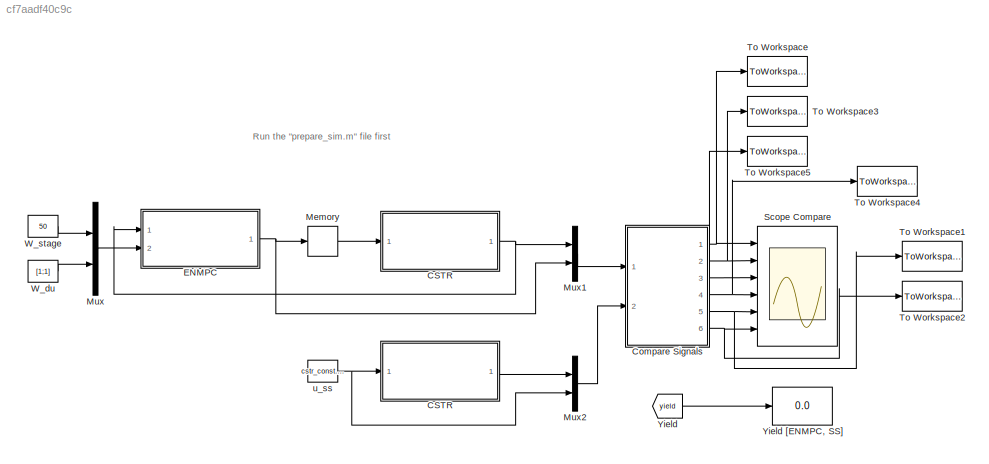
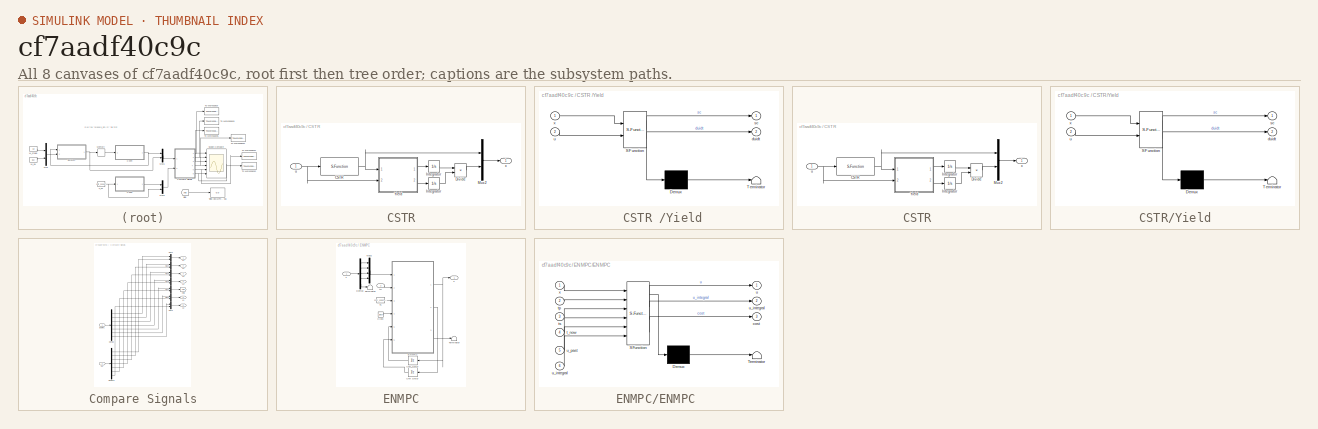
[diagram: thumbnail index - all 8 canvases of the model, root first then tree order]
MODEL slx_cf7aadf40c9c
KIND model
CONFIG AbsTol = auto
CONFIG EnableMultiTasking = off
CONFIG FixedStep = auto
CONFIG MaxStep = auto
CONFIG MinStep = auto
CONFIG RelTol = 1e-3
CONFIG SampleTimeConstraint = Unconstrained
CONFIG Solver = ode15s
CONFIG SolverName = ode15s
CONFIG StartTime = 0.0
CONFIG StopTime = 450
BLOCK [SubSystem]  CSTR 
  Ports = [1, 1]
  RequestExecContextInheritance = off
BLOCK [Integrator]  CSTR / Integrator 
  Ports = [1, 1]
BLOCK [S-Function]  CSTR /CSTR
  EnableBusSupport = off
  FunctionName = cstr_sfun
  Ports = [1, 1]
  SFcnIsStateOwnerBlock = off
  SFunctionDeploymentMode = off
BLOCK [Product]  CSTR /Divide
  InputSameDT = off
  Inputs = */
  OutDataTypeStr = Inherit: Inherit via internal rule
  Ports = [2, 1]
  RndMeth = Floor
  SaturateOnIntegerOverflow = off
BLOCK [Integrator]  CSTR /Integrator
  Ports = [1, 1]
BLOCK [Mux]  CSTR /Mux2
  DisplayOption = bar
  Inputs = 2
  Ports = [2, 1]
BLOCK [SubSystem]  CSTR /Yield
  ErrorFcn = Stateflow.Translate.translate
  PermitHierarchicalResolution = ExplicitOnly
  Ports = [2, 2]
  RequestExecContextInheritance = off
  SFBlockType = MATLAB Function
  TreatAsAtomicUnit = on
BLOCK [Demux]  CSTR /Yield/ Demux 
  Outputs = 1
  Ports = [1, 1]
BLOCK [S-Function]  CSTR /Yield/ SFunction 
  EnableBusSupport = off
  FunctionName = sf_sfun
  PortCounts = [2 3]
  Ports = [2, 3]
  SFcnIsStateOwnerBlock = off
  SFunctionDeploymentMode = off
  Tag = Stateflow S-Function cstr_control_loops 4
BLOCK [Terminator]  CSTR /Yield/ Terminator 
BLOCK [Outport]  CSTR /Yield/duidt
  IconDisplay = Port number
  Port = 2
BLOCK [Outport]  CSTR /Yield/sc
  IconDisplay = Port number
BLOCK [Inport]  CSTR /Yield/u
  IconDisplay = Port number
  Port = 2
BLOCK [Inport]  CSTR /Yield/x
  IconDisplay = Port number
BLOCK [Inport]  CSTR /u
  IconDisplay = Port number
BLOCK [Outport]  CSTR /x
  IconDisplay = Port number
BLOCK [Display]  Yield [ENMPC, SS]
  Decimation = 1
  Ports = [1]
BLOCK [SubSystem] CSTR
  Ports = [1, 1]
  RequestExecContextInheritance = off
BLOCK [Integrator] CSTR/ Integrator 
  Ports = [1, 1]
BLOCK [S-Function] CSTR/CSTR
  EnableBusSupport = off
  FunctionName = cstr_sfun
  Ports = [1, 1]
  SFcnIsStateOwnerBlock = off
  SFunctionDeploymentMode = off
BLOCK [Product] CSTR/Divide
  InputSameDT = off
  Inputs = */
  OutDataTypeStr = Inherit: Inherit via internal rule
  Ports = [2, 1]
  RndMeth = Floor
  SaturateOnIntegerOverflow = off
BLOCK [Integrator] CSTR/Integrator
  Ports = [1, 1]
BLOCK [Mux] CSTR/Mux2
  DisplayOption = bar
  Inputs = 2
  Ports = [2, 1]
BLOCK [SubSystem] CSTR/Yield
  ErrorFcn = Stateflow.Translate.translate
  PermitHierarchicalResolution = ExplicitOnly
  Ports = [2, 2]
  RequestExecContextInheritance = off
  SFBlockType = MATLAB Function
  TreatAsAtomicUnit = on
BLOCK [Demux] CSTR/Yield/ Demux 
  Outputs = 1
  Ports = [1, 1]
BLOCK [S-Function] CSTR/Yield/ SFunction 
  EnableBusSupport = off
  FunctionName = sf_sfun
  PortCounts = [2 3]
  Ports = [2, 3]
  SFcnIsStateOwnerBlock = off
  SFunctionDeploymentMode = off
  Tag = Stateflow S-Function cstr_control_loops 5
BLOCK [Terminator] CSTR/Yield/ Terminator 
BLOCK [Outport] CSTR/Yield/duidt
  IconDisplay = Port number
  Port = 2
BLOCK [Outport] CSTR/Yield/sc
  IconDisplay = Port number
BLOCK [Inport] CSTR/Yield/u
  IconDisplay = Port number
  Port = 2
BLOCK [Inport] CSTR/Yield/x
  IconDisplay = Port number
BLOCK [Inport] CSTR/u
  IconDisplay = Port number
BLOCK [Outport] CSTR/x
  IconDisplay = Port number
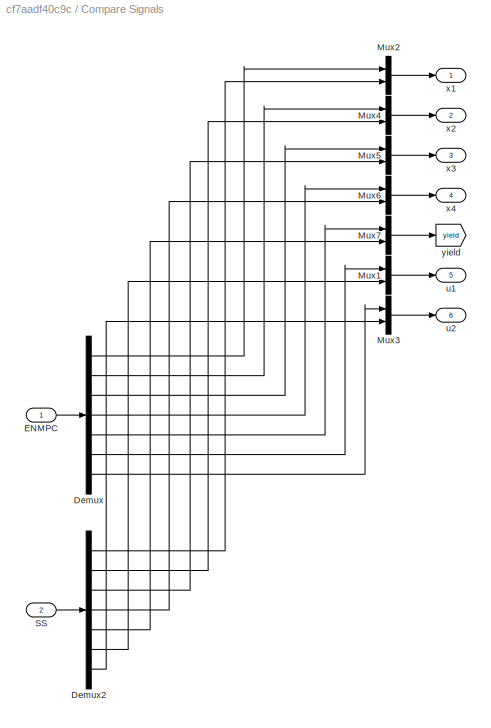
BLOCK [SubSystem] Compare Signals
  Ports = [2, 6]
  RequestExecContextInheritance = off
BLOCK [Demux] Compare Signals/Demux
  DisplayOption = bar
  Outputs = 7
  Ports = [1, 7]
BLOCK [Demux] Compare Signals/Demux2
  DisplayOption = bar
  Outputs = 7
  Ports = [1, 7]
BLOCK [Inport] Compare Signals/ENMPC
  IconDisplay = Port number
BLOCK [Mux] Compare Signals/Mux1
  DisplayOption = bar
  Inputs = 2
  Ports = [2, 1]
BLOCK [Mux] Compare Signals/Mux2
  DisplayOption = bar
  Inputs = 2
  Ports = [2, 1]
BLOCK [Mux] Compare Signals/Mux3
  DisplayOption = bar
  Inputs = 2
  Ports = [2, 1]
BLOCK [Mux] Compare Signals/Mux4
  DisplayOption = bar
  Inputs = 2
  Ports = [2, 1]
BLOCK [Mux] Compare Signals/Mux5
  DisplayOption = bar
  Inputs = 2
  Ports = [2, 1]
BLOCK [Mux] Compare Signals/Mux6
  DisplayOption = bar
  Inputs = 2
  Ports = [2, 1]
BLOCK [Mux] Compare Signals/Mux7
  DisplayOption = bar
  Inputs = 2
  Ports = [2, 1]
BLOCK [Inport] Compare Signals/SS
  IconDisplay = Port number
  Port = 2
BLOCK [Outport] Compare Signals/u1
  IconDisplay = Port number
  Port = 5
BLOCK [Outport] Compare Signals/u2
  IconDisplay = Port number
  Port = 6
BLOCK [Outport] Compare Signals/x1
  IconDisplay = Port number
BLOCK [Outport] Compare Signals/x2
  IconDisplay = Port number
  Port = 2
BLOCK [Outport] Compare Signals/x3
  IconDisplay = Port number
  Port = 3
BLOCK [Outport] Compare Signals/x4
  IconDisplay = Port number
  Port = 4
BLOCK [Goto] Compare Signals/yield
  GotoTag = yield
  TagVisibility = global
BLOCK [SubSystem] ENMPC
  Ports = [2, 1]
  RequestExecContextInheritance = off
BLOCK [UnitDelay] ENMPC/ Unit Delay 
  HasFrameUpgradeWarning = on
  SampleTime = cstr_const.ts
BLOCK [Clock] ENMPC/Clock
BLOCK [Demux] ENMPC/Demux
  DisplayOption = bar
  Outputs = 5
  Ports = [1, 5]
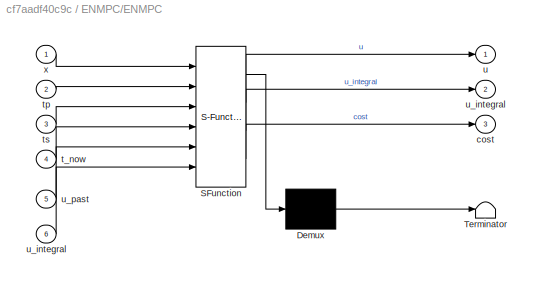
BLOCK [SubSystem] ENMPC/ENMPC 
  ErrorFcn = Stateflow.Translate.translate
  PermitHierarchicalResolution = ExplicitOnly
  Ports = [6, 3]
  RequestExecContextInheritance = off
  SFBlockType = MATLAB Function
  SystemSampleTime = cstr_const.ts
  TreatAsAtomicUnit = on
BLOCK [Demux] ENMPC/ENMPC / Demux 
  Outputs = 1
  Ports = [1, 1]
BLOCK [S-Function] ENMPC/ENMPC / SFunction 
  EnableBusSupport = off
  FunctionName = sf_sfun
  PortCounts = [6 4]
  Ports = [6, 4]
  SFcnIsStateOwnerBlock = off
  SFunctionDeploymentMode = off
  Tag = Stateflow S-Function cstr_control_loops 2
BLOCK [Terminator] ENMPC/ENMPC / Terminator 
BLOCK [Outport] ENMPC/ENMPC /cost
  IconDisplay = Port number
  Port = 3
BLOCK [Inport] ENMPC/ENMPC /t_now
  IconDisplay = Port number
  Port = 4
BLOCK [Inport] ENMPC/ENMPC /tp
  IconDisplay = Port number
  Port = 2
BLOCK [Inport] ENMPC/ENMPC /ts
  IconDisplay = Port number
  Port = 3
BLOCK [Outport] ENMPC/ENMPC /u
  IconDisplay = Port number
BLOCK [Outport] ENMPC/ENMPC /u_integral
  IconDisplay = Port number
  Port = 2
BLOCK [Inport] ENMPC/ENMPC /u_integral 
  IconDisplay = Port number
  Port = 6
BLOCK [Inport] ENMPC/ENMPC /u_past
  IconDisplay = Port number
  Port = 5
BLOCK [Inport] ENMPC/ENMPC /x
  IconDisplay = Port number
BLOCK [Mux] ENMPC/Mux2
  DisplayOption = bar
  Ports = [4, 1]
BLOCK [Terminator] ENMPC/Terminator
BLOCK [Terminator] ENMPC/Terminator 
BLOCK [Constant] ENMPC/Ts
  Value = cstr_const.ts
BLOCK [UnitDelay] ENMPC/Unit Delay
  HasFrameUpgradeWarning = on
  InitialCondition = cstr_const.u_0
  SampleTime = cstr_const.ts
BLOCK [Inport] ENMPC/tp
  IconDisplay = Port number
  Port = 2
BLOCK [Outport] ENMPC/u
  IconDisplay = Port number
BLOCK [Inport] ENMPC/x
  IconDisplay = Port number
BLOCK [Memory] Memory
  InitialCondition = cstr_const.u_0
BLOCK [Mux] Mux
  DisplayOption = bar
  Inputs = 2
  Ports = [2, 1]
BLOCK [Mux] Mux1
  DisplayOption = bar
  Inputs = 2
  Ports = [2, 1]
BLOCK [Mux] Mux2
  DisplayOption = bar
  Inputs = 2
  Ports = [2, 1]
BLOCK [Scope] Scope Compare
  Floating = off
  NumInputPorts = 6
  Ports = [6]
  ScopeSpecificationString = Simulink.scopes.TimeScopeBlockCfg('CurrentConfiguration', extmgr.ConfigurationSet(extmgr.Configuration('Core','General UI',true),extmgr.Configuration('Core','Source UI',true),extmgr.Configuration('Sources','WiredSimulink',true,'DataLogging',true,'DataLoggingSaveFormat','StructureWithTime','DataLoggingVariableName','cstr_data'),extmgr.Configuration('Visuals','Time Domain',true,'TimeAxisLabels','All...<+6799ch>
BLOCK [ToWorkspace] To Workspace
  FixptAsFi = on
  MaxDataPoints = inf
  Ports = [1]
  SampleTime = -1
  SaveFormat = Structure With Time
  VariableName = x1
BLOCK [ToWorkspace] To Workspace1
  FixptAsFi = on
  MaxDataPoints = inf
  Ports = [1]
  SampleTime = -1
  SaveFormat = Structure With Time
  VariableName = u1
BLOCK [ToWorkspace] To Workspace2
  FixptAsFi = on
  MaxDataPoints = inf
  Ports = [1]
  SampleTime = -1
  SaveFormat = Structure With Time
  VariableName = u2
BLOCK [ToWorkspace] To Workspace3
  FixptAsFi = on
  MaxDataPoints = inf
  Ports = [1]
  SampleTime = -1
  SaveFormat = Structure With Time
  VariableName = x2
BLOCK [ToWorkspace] To Workspace4
  FixptAsFi = on
  MaxDataPoints = inf
  Ports = [1]
  SampleTime = -1
  SaveFormat = Structure With Time
  VariableName = x4
BLOCK [ToWorkspace] To Workspace5
  FixptAsFi = on
  MaxDataPoints = inf
  Ports = [1]
  SampleTime = -1
  SaveFormat = Structure With Time
  VariableName = x3
BLOCK [Constant] W_du
  Value = [1;1]
BLOCK [Constant] W_stage
  Value = 50
BLOCK [From] Yield
  GotoTag = yield
  TagVisibility = global
BLOCK [Constant] u_ss
  Value = cstr_const.u_0
ANNOTATION (root): Run the "prepare_sim.m" file first
LINE  CSTR / Integrator :1 ->  CSTR /Divide:2
NET  CSTR /CSTR:1 ->  CSTR /Mux2:1,  CSTR /Yield:1
LINE  CSTR /Divide:1 ->  CSTR /Mux2:2
LINE  CSTR /Integrator:1 ->  CSTR /Divide:1
LINE  CSTR /Mux2:1 ->  CSTR /x:1
LINE  CSTR /Yield:1 ->  CSTR /Integrator:1
LINE  CSTR /Yield:2 ->  CSTR / Integrator :1
NET  CSTR /u:1 ->  CSTR /CSTR:1,  CSTR /Yield:2
LINE  CSTR :1 -> Mux2:1
LINE CSTR/ Integrator :1 -> CSTR/Divide:2
NET CSTR/CSTR:1 -> CSTR/Mux2:1, CSTR/Yield:1
LINE CSTR/Divide:1 -> CSTR/Mux2:2
LINE CSTR/Integrator:1 -> CSTR/Divide:1
LINE CSTR/Mux2:1 -> CSTR/x:1
LINE CSTR/Yield:1 -> CSTR/Integrator:1
LINE CSTR/Yield:2 -> CSTR/ Integrator :1
NET CSTR/u:1 -> CSTR/CSTR:1, CSTR/Yield:2
NET CSTR:1 -> ENMPC:1, Mux1:1
LINE Compare Signals/Demux2:1 -> Compare Signals/Mux2:2
LINE Compare Signals/Demux2:2 -> Compare Signals/Mux4:2
LINE Compare Signals/Demux2:3 -> Compare Signals/Mux5:2
LINE Compare Signals/Demux2:4 -> Compare Signals/Mux6:2
LINE Compare Signals/Demux2:5 -> Compare Signals/Mux7:2
LINE Compare Signals/Demux2:6 -> Compare Signals/Mux1:2
LINE Compare Signals/Demux2:7 -> Compare Signals/Mux3:2
LINE Compare Signals/Demux:1 -> Compare Signals/Mux2:1
LINE Compare Signals/Demux:2 -> Compare Signals/Mux4:1
LINE Compare Signals/Demux:3 -> Compare Signals/Mux5:1
LINE Compare Signals/Demux:4 -> Compare Signals/Mux6:1
LINE Compare Signals/Demux:5 -> Compare Signals/Mux7:1
LINE Compare Signals/Demux:6 -> Compare Signals/Mux1:1
LINE Compare Signals/Demux:7 -> Compare Signals/Mux3:1
LINE Compare Signals/ENMPC:1 -> Compare Signals/Demux:1
LINE Compare Signals/Mux1:1 -> Compare Signals/u1:1
LINE Compare Signals/Mux2:1 -> Compare Signals/x1:1
LINE Compare Signals/Mux3:1 -> Compare Signals/u2:1
LINE Compare Signals/Mux4:1 -> Compare Signals/x2:1
LINE Compare Signals/Mux5:1 -> Compare Signals/x3:1
LINE Compare Signals/Mux6:1 -> Compare Signals/x4:1
LINE Compare Signals/Mux7:1 -> Compare Signals/yield:1
LINE Compare Signals/SS:1 -> Compare Signals/Demux2:1
NET Compare Signals:1 -> Scope Compare:1, To Workspace:1
NET Compare Signals:2 -> Scope Compare:2, To Workspace3:1
NET Compare Signals:3 -> Scope Compare:3, To Workspace5:1
NET Compare Signals:4 -> Scope Compare:4, To Workspace4:1
NET Compare Signals:5 -> Scope Compare:5, To Workspace1:1
NET Compare Signals:6 -> Scope Compare:6, To Workspace2:1
LINE ENMPC/ Unit Delay :1 -> ENMPC/ENMPC :6
LINE ENMPC/Clock:1 -> ENMPC/ENMPC :4
LINE ENMPC/Demux:1 -> ENMPC/Mux2:1
LINE ENMPC/Demux:2 -> ENMPC/Mux2:2
LINE ENMPC/Demux:3 -> ENMPC/Mux2:3
LINE ENMPC/Demux:4 -> ENMPC/Mux2:4
LINE ENMPC/Demux:5 -> ENMPC/Terminator:1
NET ENMPC/ENMPC :1 -> ENMPC/Unit Delay:1, ENMPC/u:1
LINE ENMPC/ENMPC :2 -> ENMPC/ Unit Delay :1
LINE ENMPC/ENMPC :3 -> ENMPC/Terminator :1
LINE ENMPC/Mux2:1 -> ENMPC/ENMPC :1
LINE ENMPC/Ts:1 -> ENMPC/ENMPC :3
LINE ENMPC/Unit Delay:1 -> ENMPC/ENMPC :5
LINE ENMPC/tp:1 -> ENMPC/ENMPC :2
LINE ENMPC/x:1 -> ENMPC/Demux:1
NET ENMPC:1 -> Memory:1, Mux1:2
LINE Memory:1 -> CSTR:1
LINE Mux1:1 -> Compare Signals:1
LINE Mux2:1 -> Compare Signals:2
LINE Mux:1 -> ENMPC:2
LINE W_du:1 -> Mux:2
LINE W_stage:1 -> Mux:1
LINE Yield:1 ->  Yield [ENMPC, SS]:1
NET u_ss:1 ->  CSTR :1, Mux2:2
note: NET lines group one-source signal fan-out (src -> all destinations, sorted); 1:1 wires keep LINE
CHART ENMPC/ENMPC
 states=1 transitions=1
  STATE_LABEL 'eML_blk_kernel()'
  STATE_LABEL "SCRIPT:\nfunction [u, u_integral, cost] = enmpc(x,tp,ts,t_now,u_past,u_integral)\n    u = u_past; cost = 0;\n    coder.extrinsic('get_control_input');\n    [u, u_integral, cost] = get_control_input(x, u_past, tp, u_integral, t_now, 1, ts);\nend"
CHART  CSTR /Yield states=1 transitions=1
  STATE_LABEL 'eML_blk_kernel()'
  STATE_LABEL "SCRIPT:\nfunction [sc, duidt] = cost(x,u)\n    sc = 0; duidt = 1e-4;\n    coder.extrinsic('ode_set');\n    [~,sc,duidt] = ode_set(x,u);\nend\n"
CHART CSTR/Yield states=1 transitions=1
  STATE_LABEL 'eML_blk_kernel()'
  STATE_LABEL "SCRIPT:\nfunction [sc, duidt] = cost(x,u)\n    sc = 0; duidt = 1e-4;\n    coder.extrinsic('ode_set');\n    [~,sc,duidt] = ode_set(x,u);\nend\n"
